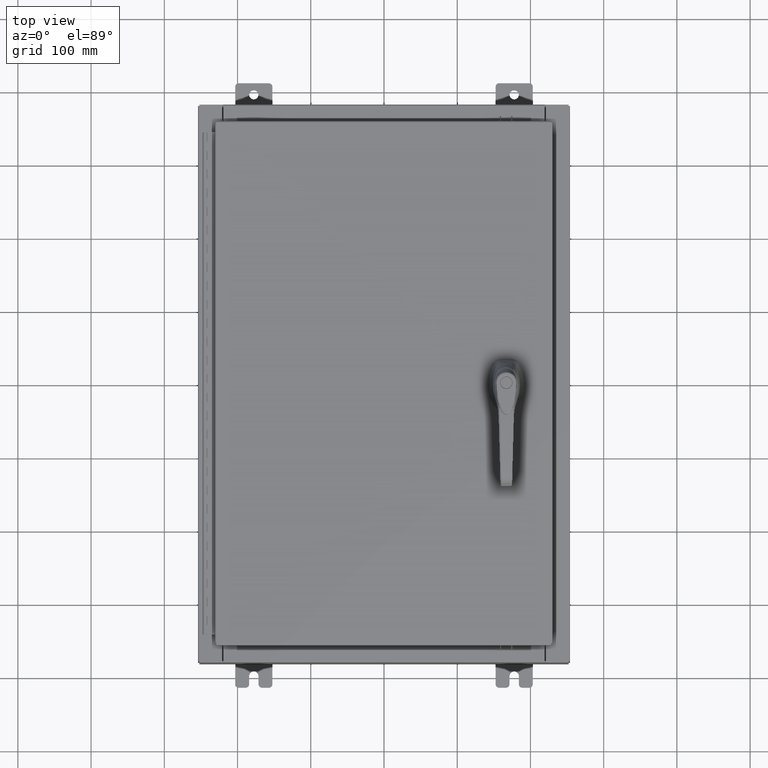
[diagram: clean part render]
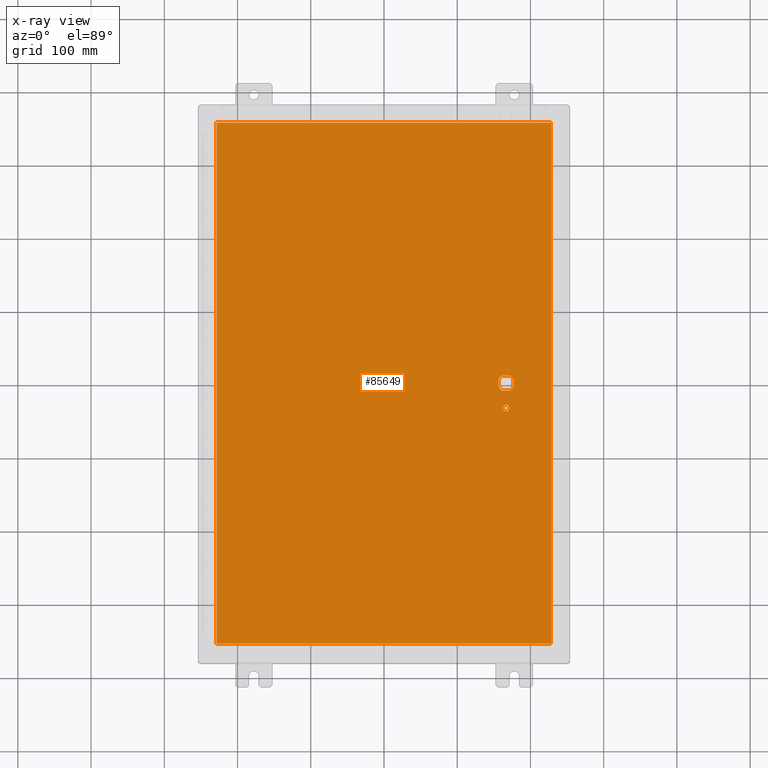
[diagram: x-ray — body ghosted, one internal face saturated and labeled with its STEP entity id]
A machine part, top view, then the same camera in x-ray: the body is ghosted and one INTERNAL B-rep face — a face not visible from any outside direction — is saturated and labeled: STEP entity #85649.
In plain terms, the highlighted planar face has unit normal (0, 0, -1).
Its self-contained STEP definition (entity closure, byte-faithful):
#275 = ORIENTED_EDGE ( 'NONE', *, *, #75942, .T. ) ;
#869 = CARTESIAN_POINT ( 'NONE',  ( -8.990299999999997700, 14.00629999999999800, -0.07470000000000000300 ) ) ;
#1080 = ORIENTED_EDGE ( 'NONE', *, *, #88150, .F. ) ;
#4290 = VERTEX_POINT ( 'NONE', #869 ) ;
#5482 = CARTESIAN_POINT ( 'NONE',  ( 6.377772629243691100, -0.4029999999999250300, -0.07470000000000003000 ) ) ;
#5731 = FACE_BOUND ( 'NONE', #54807, .T. ) ;
#7259 = CIRCLE ( 'NONE', #57958, 0.4499999999999156900 ) ;
#8150 = CARTESIAN_POINT ( 'NONE',  ( 6.778227370756310300, 0.4029999999999250300, -0.07470000000000003000 ) ) ;
#8209 = AXIS2_PLACEMENT_3D ( 'NONE', #68545, #13736, #77743 ) ;
#8934 = CIRCLE ( 'NONE', #57079, 0.1715000000000000700 ) ;
#10423 = EDGE_LOOP ( 'NONE', ( #39424, #88822, #73340, #1080 ) ) ;
#11322 = VERTEX_POINT ( 'NONE', #59703 ) ;
#11967 = ORIENTED_EDGE ( 'NONE', *, *, #12921, .T. ) ;
#12921 = EDGE_CURVE ( 'NONE', #88316, #76700, #19173, .T. ) ;
#13457 = EDGE_LOOP ( 'NONE', ( #110723, #81766 ) ) ;
#13577 = VERTEX_POINT ( 'NONE', #56474 ) ;
#13736 = DIRECTION ( 'NONE',  ( -0.0000000000000000000, -0.0000000000000000000, 1.000000000000000000 ) ) ;
#15836 = VERTEX_POINT ( 'NONE', #27171 ) ;
#15941 = DIRECTION ( 'NONE',  ( -0.0000000000000000000, -0.0000000000000000000, 1.000000000000000000 ) ) ;
#16325 = CARTESIAN_POINT ( 'NONE',  ( 6.778227370756310300, -0.4029999999999252000, -0.07470000000000003000 ) ) ;
#17788 = CARTESIAN_POINT ( 'NONE',  ( 6.749500000000001200, -1.338000000000000100, -0.07470000000000003000 ) ) ;
#18245 = CARTESIAN_POINT ( 'NONE',  ( 6.377772629243691100, 0.4029999999999252000, -0.07470000000000003000 ) ) ;
#19173 = LINE ( 'NONE', #64315, #113658 ) ;
#19259 = CARTESIAN_POINT ( 'NONE',  ( 0.0000000000000000000, 0.0000000000000000000, -0.07470000000000000300 ) ) ;
#19667 = EDGE_CURVE ( 'NONE', #29029, #15836, #54155, .T. ) ;
#19966 = ORIENTED_EDGE ( 'NONE', *, *, #50270, .T. ) ;
#21136 = VERTEX_POINT ( 'NONE', #22560 ) ;
#22431 = EDGE_CURVE ( 'NONE', #110706, #86280, #88298, .T. ) ;
#22560 = CARTESIAN_POINT ( 'NONE',  ( 8.990299999999999500, 14.00629999999999800, -0.07470000000000000300 ) ) ;
#24142 = CARTESIAN_POINT ( 'NONE',  ( 8.990300000000001300, 14.00629999999999800, -0.07470000000000019700 ) ) ;
#25705 = LINE ( 'NONE', #78574, #95808 ) ;
#27098 = VECTOR ( 'NONE', #97345, 39.37007874015748100 ) ;
#27171 = CARTESIAN_POINT ( 'NONE',  ( 8.990300000000001300, -14.00629999999999800, -0.07470000000000000300 ) ) ;
#28777 = LINE ( 'NONE', #66619, #74592 ) ;
#29029 = VERTEX_POINT ( 'NONE', #44267 ) ;
#29775 = VECTOR ( 'NONE', #46810, 39.37007874015748100 ) ;
#29890 = EDGE_CURVE ( 'NONE', #68674, #88316, #96878, .T. ) ;
#30049 = FACE_OUTER_BOUND ( 'NONE', #10423, .T. ) ;
#30060 = AXIS2_PLACEMENT_3D ( 'NONE', #19259, #92460, #37699 ) ;
#32195 = CARTESIAN_POINT ( 'NONE',  ( 6.980999999999926200, -0.2002273707563080300, -0.07470000000000003000 ) ) ;
#32965 = FACE_BOUND ( 'NONE', #13457, .T. ) ;
#34207 = DIRECTION ( 'NONE',  ( 1.000000000000000000, 0.0000000000000000000, 0.0000000000000000000 ) ) ;
#35293 = EDGE_CURVE ( 'NONE', #4290, #29029, #104659, .T. ) ;
#37699 = DIRECTION ( 'NONE',  ( -1.000000000000000000, 0.0000000000000000000, -0.0000000000000000000 ) ) ;
#38448 = DIRECTION ( 'NONE',  ( -0.0000000000000000000, -0.0000000000000000000, 1.000000000000000000 ) ) ;
#39424 = ORIENTED_EDGE ( 'NONE', *, *, #70911, .F. ) ;
#40027 = AXIS2_PLACEMENT_3D ( 'NONE', #97110, #42384, #106343 ) ;
#40601 = EDGE_CURVE ( 'NONE', #68674, #79756, #95351, .T. ) ;
#41280 = EDGE_CURVE ( 'NONE', #11322, #96435, #82408, .T. ) ;
#41299 = AXIS2_PLACEMENT_3D ( 'NONE', #70753, #15941, #79946 ) ;
#42362 = DIRECTION ( 'NONE',  ( -0.0000000000000000000, -0.0000000000000000000, 1.000000000000000000 ) ) ;
#42384 = DIRECTION ( 'NONE',  ( -0.0000000000000000000, -0.0000000000000000000, 1.000000000000000000 ) ) ;
#44267 = CARTESIAN_POINT ( 'NONE',  ( -8.990299999999996000, -14.00629999999999600, -0.07470000000000000300 ) ) ;
#46434 = CARTESIAN_POINT ( 'NONE',  ( 6.578000000000000300, 0.0000000000000000000, -0.07470000000000003000 ) ) ;
#46577 = ORIENTED_EDGE ( 'NONE', *, *, #87079, .T. ) ;
#46810 = DIRECTION ( 'NONE',  ( 1.000000000000000000, -0.0000000000000000000, -0.0000000000000000000 ) ) ;
#49941 = VECTOR ( 'NONE', #34207, 39.37007874015748100 ) ;
#50270 = EDGE_CURVE ( 'NONE', #76700, #13577, #93543, .T. ) ;
#50553 = DIRECTION ( 'NONE',  ( 0.0000000000000000000, -1.000000000000000000, 0.0000000000000000000 ) ) ;
#53619 = EDGE_CURVE ( 'NONE', #96435, #11322, #8934, .T. ) ;
#54155 = LINE ( 'NONE', #75911, #29775 ) ;
#54807 = EDGE_LOOP ( 'NONE', ( #275, #61101, #60473, #11967, #19966, #102349, #70042, #46577 ) ) ;
#55618 = DIRECTION ( 'NONE',  ( -1.000000000000000000, 0.0000000000000000000, 0.0000000000000000000 ) ) ;
#56474 = CARTESIAN_POINT ( 'NONE',  ( 6.175000000000075300, 0.2002273707563080300, -0.07470000000000003000 ) ) ;
#57079 = AXIS2_PLACEMENT_3D ( 'NONE', #93204, #38448, #102437 ) ;
#57958 = AXIS2_PLACEMENT_3D ( 'NONE', #46434, #110415, #55618 ) ;
#59703 = CARTESIAN_POINT ( 'NONE',  ( 6.406500000000000300, -1.338000000000000100, -0.07470000000000003000 ) ) ;
#60260 = DIRECTION ( 'NONE',  ( 0.0000000000000000000, -1.000000000000000000, 0.0000000000000000000 ) ) ;
#60473 = ORIENTED_EDGE ( 'NONE', *, *, #29890, .T. ) ;
#61101 = ORIENTED_EDGE ( 'NONE', *, *, #40601, .F. ) ;
#63046 = AXIS2_PLACEMENT_3D ( 'NONE', #97083, #42362, #106318 ) ;
#64315 = CARTESIAN_POINT ( 'NONE',  ( 0.0000000000000000000, 0.4029999999999252000, -0.07470000000000003000 ) ) ;
#65333 = VECTOR ( 'NONE', #60260, 39.37007874015748100 ) ;
#66619 = CARTESIAN_POINT ( 'NONE',  ( 6.175000000000075300, 0.0000000000000000000, -0.07470000000000003000 ) ) ;
#68545 = CARTESIAN_POINT ( 'NONE',  ( 6.578000000000000300, -1.338000000000000100, -0.07470000000000003000 ) ) ;
#68674 = VERTEX_POINT ( 'NONE', #93002 ) ;
#70042 = ORIENTED_EDGE ( 'NONE', *, *, #22431, .T. ) ;
#70507 = CARTESIAN_POINT ( 'NONE',  ( -8.990299999999997700, 14.00630000000000100, -0.07470000000000019700 ) ) ;
#70753 = CARTESIAN_POINT ( 'NONE',  ( 6.578000000000000300, 0.0000000000000000000, -0.07470000000000003000 ) ) ;
#70911 = EDGE_CURVE ( 'NONE', #15836, #21136, #25705, .T. ) ;
#73340 = ORIENTED_EDGE ( 'NONE', *, *, #35293, .F. ) ;
#74114 = PLANE ( 'NONE',  #30060 ) ;
#74592 = VECTOR ( 'NONE', #75824, 39.37007874015748100 ) ;
#74796 = DIRECTION ( 'NONE',  ( -1.000000000000000000, 0.0000000000000000000, 0.0000000000000000000 ) ) ;
#75824 = DIRECTION ( 'NONE',  ( 0.0000000000000000000, -1.000000000000000000, 0.0000000000000000000 ) ) ;
#75911 = CARTESIAN_POINT ( 'NONE',  ( -8.990299999999996000, -14.00629999999999800, -0.07469999999999800400 ) ) ;
#75942 = EDGE_CURVE ( 'NONE', #118398, #79756, #7259, .T. ) ;
#76700 = VERTEX_POINT ( 'NONE', #18245 ) ;
#77743 = DIRECTION ( 'NONE',  ( -1.000000000000000000, 0.0000000000000000000, 0.0000000000000000000 ) ) ;
#78574 = CARTESIAN_POINT ( 'NONE',  ( 8.990300000000001300, -14.00629999999999800, -0.07470000000000076600 ) ) ;
#79756 = VERTEX_POINT ( 'NONE', #32195 ) ;
#79946 = DIRECTION ( 'NONE',  ( -1.000000000000000000, 0.0000000000000000000, 0.0000000000000000000 ) ) ;
#81766 = ORIENTED_EDGE ( 'NONE', *, *, #41280, .T. ) ;
#82408 = CIRCLE ( 'NONE', #8209, 0.1715000000000000700 ) ;
#84346 = EDGE_CURVE ( 'NONE', #13577, #110706, #28777, .T. ) ;
#85649 = ADVANCED_FACE ( 'NONE', ( #32965, #30049, #5731 ), #74114, .T. ) ;
#86280 = VERTEX_POINT ( 'NONE', #5482 ) ;
#87079 = EDGE_CURVE ( 'NONE', #86280, #118398, #95682, .T. ) ;
#88150 = EDGE_CURVE ( 'NONE', #21136, #4290, #94313, .T. ) ;
#88298 = CIRCLE ( 'NONE', #40027, 0.4499999999999156900 ) ;
#88316 = VERTEX_POINT ( 'NONE', #8150 ) ;
#88822 = ORIENTED_EDGE ( 'NONE', *, *, #19667, .F. ) ;
#91047 = CARTESIAN_POINT ( 'NONE',  ( 6.175000000000075300, -0.2002273707563079800, -0.07470000000000003000 ) ) ;
#92460 = DIRECTION ( 'NONE',  ( 0.0000000000000000000, 0.0000000000000000000, -1.000000000000000000 ) ) ;
#93002 = CARTESIAN_POINT ( 'NONE',  ( 6.980999999999926200, 0.2002273707563080300, -0.07470000000000003000 ) ) ;
#93204 = CARTESIAN_POINT ( 'NONE',  ( 6.578000000000000300, -1.338000000000000100, -0.07470000000000003000 ) ) ;
#93543 = CIRCLE ( 'NONE', #63046, 0.4499999999999156900 ) ;
#94313 = LINE ( 'NONE', #24142, #27098 ) ;
#95351 = LINE ( 'NONE', #105834, #65333 ) ;
#95682 = LINE ( 'NONE', #107006, #49941 ) ;
#95808 = VECTOR ( 'NONE', #96955, 39.37007874015748100 ) ;
#96435 = VERTEX_POINT ( 'NONE', #17788 ) ;
#96878 = CIRCLE ( 'NONE', #41299, 0.4499999999999156900 ) ;
#96955 = DIRECTION ( 'NONE',  ( 0.0000000000000000000, 1.000000000000000000, 0.0000000000000000000 ) ) ;
#97083 = CARTESIAN_POINT ( 'NONE',  ( 6.578000000000000300, 0.0000000000000000000, -0.07470000000000003000 ) ) ;
#97110 = CARTESIAN_POINT ( 'NONE',  ( 6.578000000000000300, 0.0000000000000000000, -0.07470000000000003000 ) ) ;
#97345 = DIRECTION ( 'NONE',  ( -1.000000000000000000, -0.0000000000000000000, -0.0000000000000000000 ) ) ;
#102349 = ORIENTED_EDGE ( 'NONE', *, *, #84346, .T. ) ;
#102437 = DIRECTION ( 'NONE',  ( -1.000000000000000000, 0.0000000000000000000, 0.0000000000000000000 ) ) ;
#104659 = LINE ( 'NONE', #70507, #107548 ) ;
#105834 = CARTESIAN_POINT ( 'NONE',  ( 6.980999999999926200, 0.0000000000000000000, -0.07470000000000003000 ) ) ;
#106318 = DIRECTION ( 'NONE',  ( -1.000000000000000000, 0.0000000000000000000, 0.0000000000000000000 ) ) ;
#106343 = DIRECTION ( 'NONE',  ( -1.000000000000000000, 8.881784197001256300E-016, 0.0000000000000000000 ) ) ;
#107006 = CARTESIAN_POINT ( 'NONE',  ( 0.0000000000000000000, -0.4029999999999252000, -0.07470000000000003000 ) ) ;
#107548 = VECTOR ( 'NONE', #50553, 39.37007874015748100 ) ;
#110415 = DIRECTION ( 'NONE',  ( -0.0000000000000000000, -0.0000000000000000000, 1.000000000000000000 ) ) ;
#110706 = VERTEX_POINT ( 'NONE', #91047 ) ;
#110723 = ORIENTED_EDGE ( 'NONE', *, *, #53619, .T. ) ;
#113658 = VECTOR ( 'NONE', #74796, 39.37007874015748100 ) ;
#118398 = VERTEX_POINT ( 'NONE', #16325 ) ;